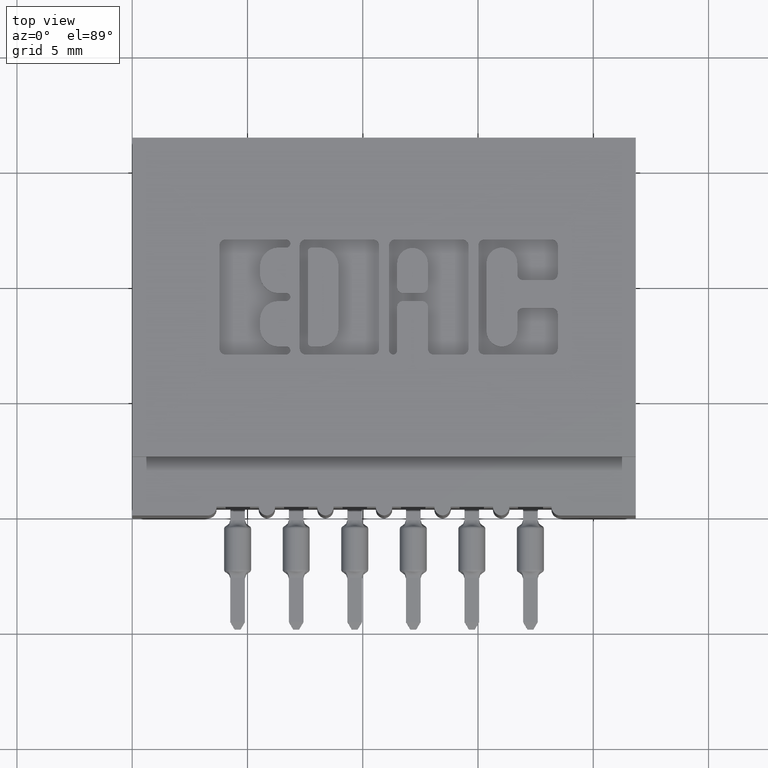
[diagram: clean part render]
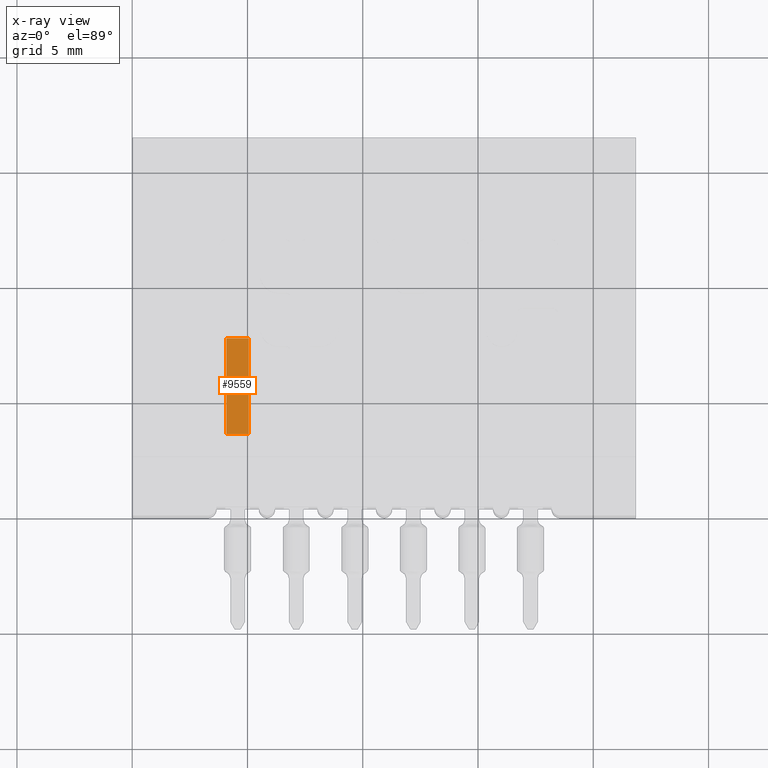
[diagram: x-ray — body ghosted, one internal face saturated and labeled with its STEP entity id]
A machine part, top view, then the same camera in x-ray: the body is ghosted and one INTERNAL B-rep face — a face not visible from any outside direction — is saturated and labeled: STEP entity #9559.
In plain terms, the highlighted planar face has unit normal (0, -0, -1).
Its self-contained STEP definition (entity closure, byte-faithful):
#671 = ORIENTED_EDGE ( 'NONE', *, *, #10021, .F. ) ;
#1126 = FACE_OUTER_BOUND ( 'NONE', #4394, .T. ) ;
#1286 = ORIENTED_EDGE ( 'NONE', *, *, #7984, .T. ) ;
#1344 = EDGE_CURVE ( 'NONE', #6932, #10739, #8403, .T. ) ;
#2137 = VERTEX_POINT ( 'NONE', #8274 ) ;
#2470 = DIRECTION ( 'NONE',  ( 1.000000000000000000, -2.622824494189284757E-15, -4.886964129285171720E-14 ) ) ;
#2523 = CARTESIAN_POINT ( 'NONE',  ( 0.01900000000000217487, -0.0004999999999900985341, -0.1562500000000110745 ) ) ;
#4394 = EDGE_LOOP ( 'NONE', ( #1286, #671, #7781, #5201 ) ) ;
#4846 = VECTOR ( 'NONE', #13379, 39.37007874015748143 ) ;
#5201 = ORIENTED_EDGE ( 'NONE', *, *, #6533, .T. ) ;
#5508 = CARTESIAN_POINT ( 'NONE',  ( -0.01899999999998632991, -0.0004999999999914303680, -0.3201234683868773856 ) ) ;
#5664 = VECTOR ( 'NONE', #12999, 39.37007874015748143 ) ;
#5704 = CARTESIAN_POINT ( 'NONE',  ( -0.01899999999999998912, -0.0004999999999999673759, 1.037248535094399938E-15 ) ) ;
#5991 = LINE ( 'NONE', #6054, #12181 ) ;
#6054 = CARTESIAN_POINT ( 'NONE',  ( -0.01899999999998632991, -0.0004999999999914303680, -0.3201234683868773856 ) ) ;
#6221 = CARTESIAN_POINT ( 'NONE',  ( -0.01899999999999998912, -0.0004999999999999673759, 1.037248535094399938E-15 ) ) ;
#6243 = CARTESIAN_POINT ( 'NONE',  ( 0.01899999999999998912, -0.0004999999999978501459, -1.075665147505303581E-15 ) ) ;
#6533 = EDGE_CURVE ( 'NONE', #6932, #7512, #8885, .T. ) ;
#6601 = VECTOR ( 'NONE', #13042, 39.37007874015748143 ) ;
#6932 = VERTEX_POINT ( 'NONE', #11112 ) ;
#7512 = VERTEX_POINT ( 'NONE', #2523 ) ;
#7781 = ORIENTED_EDGE ( 'NONE', *, *, #1344, .F. ) ;
#7824 = CARTESIAN_POINT ( 'NONE',  ( -0.01899999999999780337, -0.0004999999999924888746, -0.1562500000000111855 ) ) ;
#7984 = EDGE_CURVE ( 'NONE', #7512, #2137, #9546, .T. ) ;
#8274 = CARTESIAN_POINT ( 'NONE',  ( 0.01900000000001364833, -0.0004999999999906448635, -0.3201234683868764419 ) ) ;
#8403 = LINE ( 'NONE', #6221, #6601 ) ;
#8885 = LINE ( 'NONE', #7824, #4846 ) ;
#9546 = LINE ( 'NONE', #6243, #5664 ) ;
#9559 = ADVANCED_FACE ( 'NONE', ( #1126 ), #14717, .F. ) ;
#10021 = EDGE_CURVE ( 'NONE', #10739, #2137, #5991, .T. ) ;
#10285 = DIRECTION ( 'NONE',  ( 4.886964129284832194E-14, -1.356735258461844079E-14, -1.000000000000000000 ) ) ;
#10739 = VERTEX_POINT ( 'NONE', #5508 ) ;
#11112 = CARTESIAN_POINT ( 'NONE',  ( -0.01899999999999780337, -0.0004999999999924888746, -0.1562500000000111855 ) ) ;
#11456 = AXIS2_PLACEMENT_3D ( 'NONE', #5704, #13579, #10285 ) ;
#12181 = VECTOR ( 'NONE', #2470, 39.37007874015748143 ) ;
#12999 = DIRECTION ( 'NONE',  ( 4.886964129284832194E-14, -1.356735258461844079E-14, -1.000000000000000000 ) ) ;
#13042 = DIRECTION ( 'NONE',  ( 4.886964129284832194E-14, -1.356735258461844079E-14, -1.000000000000000000 ) ) ;
#13379 = DIRECTION ( 'NONE',  ( 1.000000000000000000, -2.622824494189284757E-15, -4.886964129285171720E-14 ) ) ;
#13579 = DIRECTION ( 'NONE',  ( 2.622824494187936988E-15, -1.000000000000000000, 1.356735258461856859E-14 ) ) ;
#14717 = PLANE ( 'NONE',  #11456 ) ;